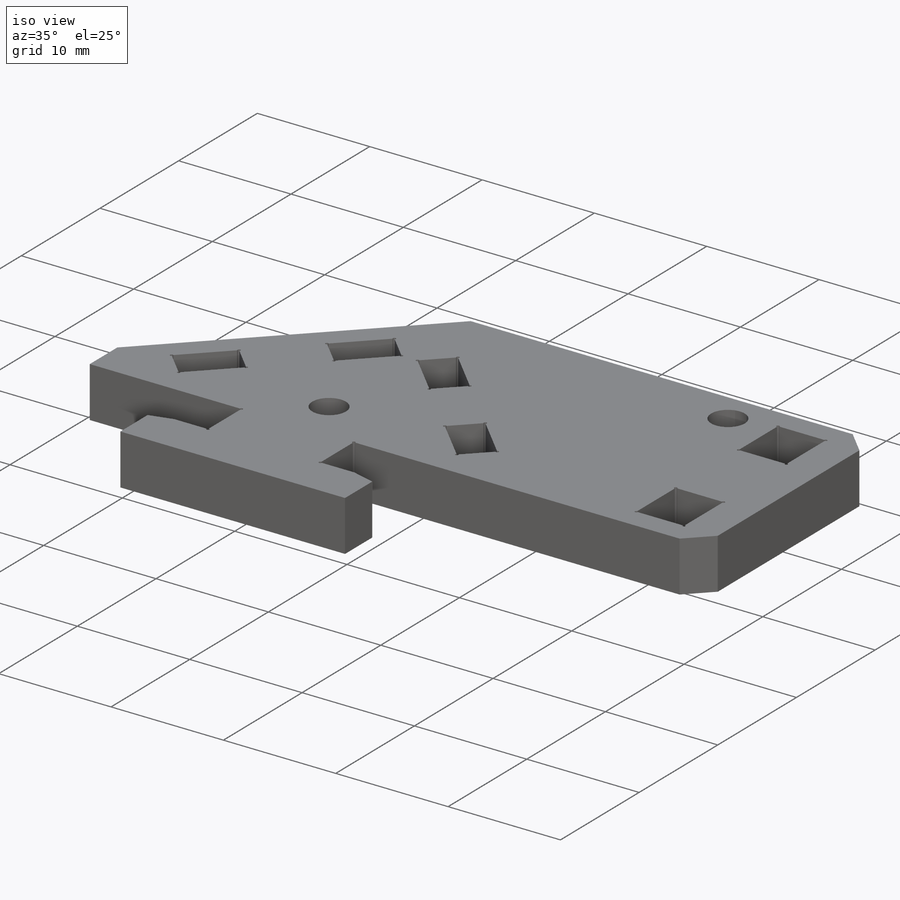
[diagram: iso view]
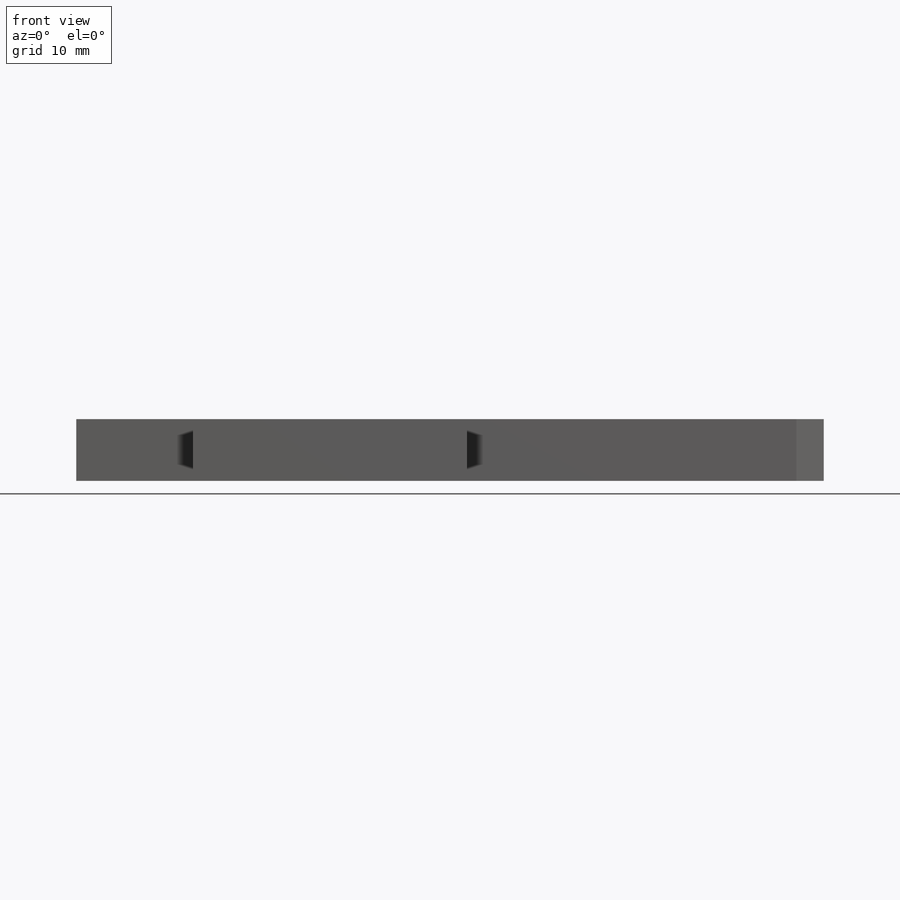
[diagram: front view]
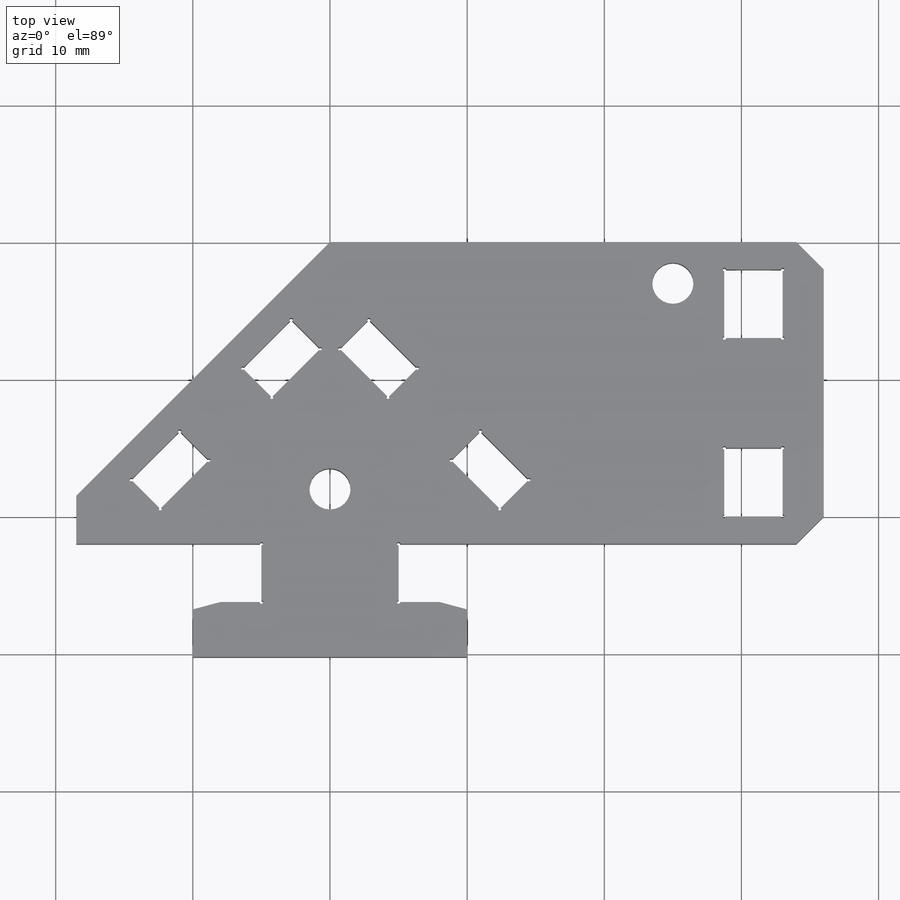
[diagram: top view]
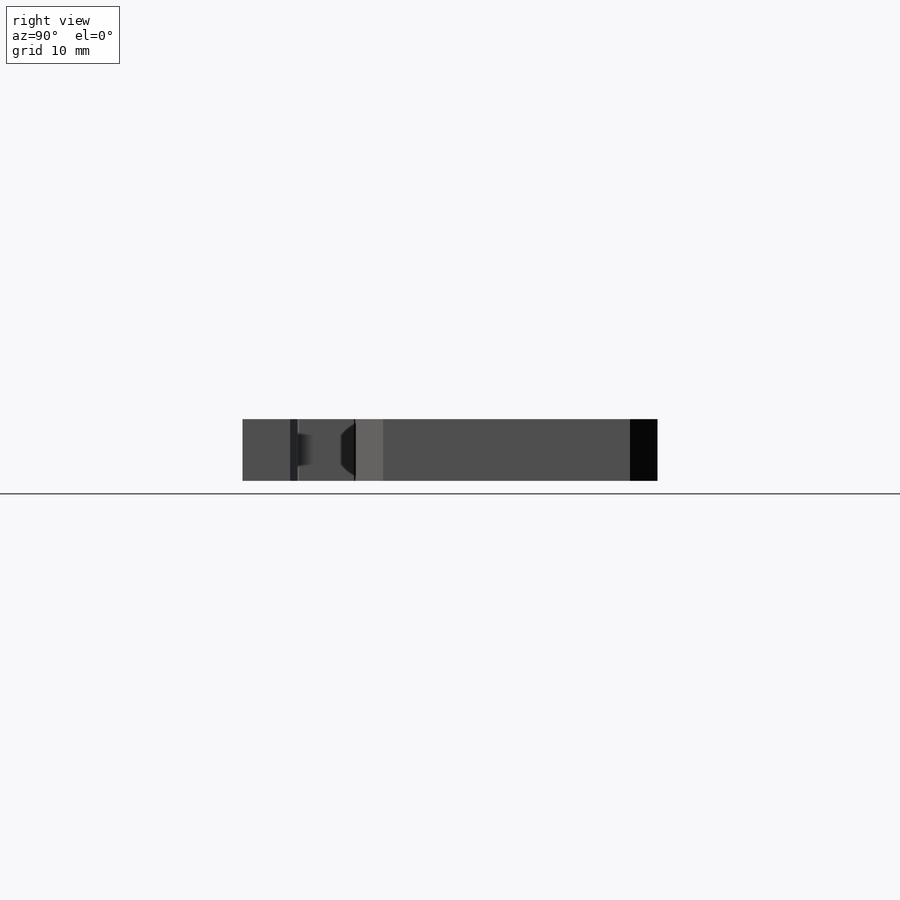
[diagram: right view]
SOLIDWORKS PART (.sldprt)
format: sldprt  version: not decoded by parser v0  size: 386,048 bytes
history: native  units: mm
features: sketch x8, cut_extrude x4, extrude x3, chamfer x2, material x1, mirror x1 + 1 further entry (+16 scaffold rows collapsed)
feature tree (36):
  scaffold x16  (default folders/planes/origin — collapsed)
  material  "Material <not specified>"
  sketch  "Sketch1"  dims[c1.D1=22.0mm c1.D2=~24.872651mm c2.D2=45.0deg c2.D3=36.0mm c2.D4=3.5mm]
  extrude  "Boss-Extrude1"  Depth=4.5mm
  sketch  "Sketch2"  dims[D1=2.0mm D2=5.0mm D3=3.0mm D4=11.5mm D5=4.0mm]
  cut_extrude  "Cut-Extrude1"  [1 undecoded]
  mirror  "Mirror1"
  sketch  "Sketch3"  dims[D1=2.0mm D2=3.0mm D3=2.0mm D4=4.25mm]
  cut_extrude  "Cut-Extrude2"  [1 undecoded]
  sketch  "Sketch4"  dims[D1=3.0mm D2=18.0mm D3=3.0mm D4=11.0mm]
  cut_extrude  "Cut-Extrude3"  [1 undecoded]
  sketch  "Sketch5"  dims[D1=4.25mm D2=10.0mm D3=20.0mm D4=4.0mm]
  extrude  "Boss-Extrude2"  [1 undecoded]
  chamfer  "Chamfer1"  Distance=2mm Angle=15deg
  sketch  "Sketch6"  dims[D1=10.0mm D2=4.5mm D3=4.0mm D4=20.0mm]
  extrude  "Boss-Extrude3"  [1 undecoded]
  chamfer  "Chamfer2"  Distance=2mm Angle=45deg
  sketch  "Sketch7"
  sketch  "Sketch8"  dims[D1=0.25mm]
  cut_extrude  "Cut-Extrude4"  [1 undecoded]
  "Sketch-Pattern1"
decode coverage: 10 of 18 modeling features carry decoded parameters; 1 rows unclassified (native names shown)
note: ~ marks probable driven/reference dimensions
note: 6 parameter values undecoded
summary: no parameter record found for 6 features
note: suppression state not decoded; provenance and decode notes live in map.json
